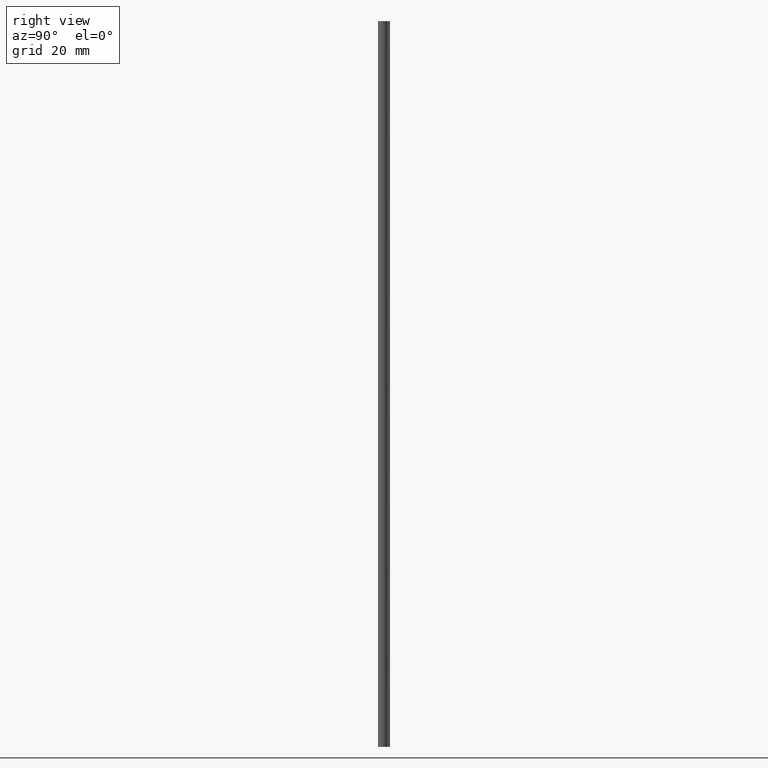
[diagram: clean part render]
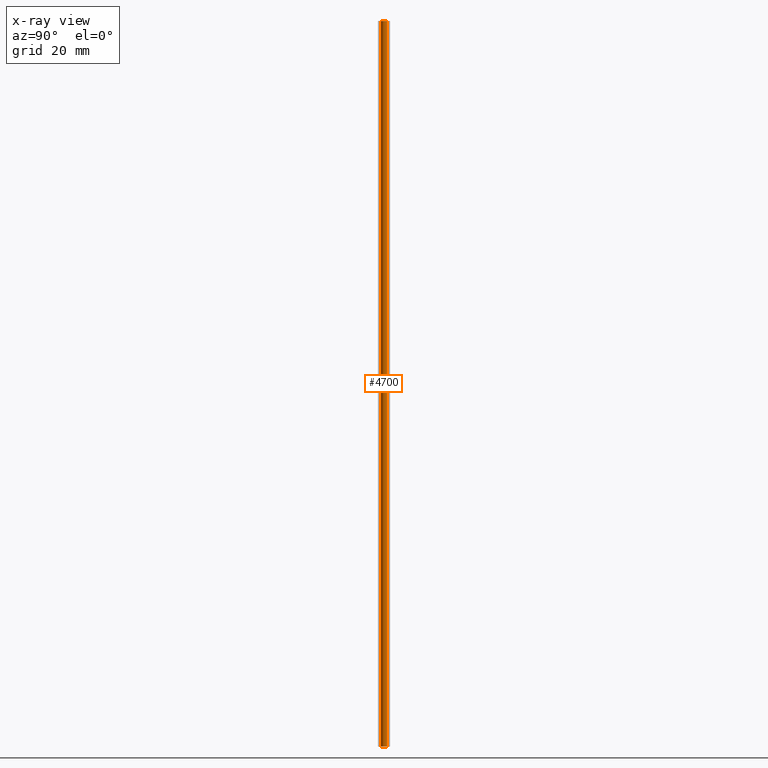
[diagram: x-ray — body ghosted, one internal face saturated and labeled with its STEP entity id]
A machine part, right view, then the same camera in x-ray: the body is ghosted and one INTERNAL B-rep face — a face not visible from any outside direction — is saturated and labeled: STEP entity #4700.
In plain terms, the highlighted face is a freeform B-spline surface patch.
Its self-contained STEP definition (entity closure, byte-faithful):
#4598=CARTESIAN_POINT('',(0.059017117328379,-0.496504763181833,123.000000000000010));
#4599=CARTESIAN_POINT('',(0.044807364318989,-0.498193807724303,123.0));
#4600=CARTESIAN_POINT('',(0.030524269767428,-0.499067399210933,123.0));
#4601=CARTESIAN_POINT('',(-0.468543129443505,-0.529591668978362,123.000000000000010));
#4602=CARTESIAN_POINT('',(-0.499067399210933,-0.030524269767428,123.0));
#4603=CARTESIAN_POINT('',(-0.529591668978362,0.468543129443505,123.000000000000010));
#4604=CARTESIAN_POINT('',(-0.030524269767428,0.499067399210933,123.0));
#4605=CARTESIAN_POINT('',(0.059017117328379,-0.496504763181833,-3.075000000000004));
#4606=CARTESIAN_POINT('',(0.044807364318989,-0.498193807724303,-3.075000000000003));
#4607=CARTESIAN_POINT('',(0.030524269767428,-0.499067399210933,-3.075000000000003));
#4608=CARTESIAN_POINT('',(-0.468543129443505,-0.529591668978362,-3.075000000000003));
#4609=CARTESIAN_POINT('',(-0.499067399210933,-0.030524269767428,-3.075000000000003));
#4610=CARTESIAN_POINT('',(-0.529591668978362,0.468543129443505,-3.075000000000003));
#4611=CARTESIAN_POINT('',(-0.030524269767428,0.499067399210933,-3.075000000000003));
#4619=(BOUNDED_SURFACE()B_SPLINE_SURFACE(2,1,((#4598,#4605),(#4599,#4606),(#4600,#4607),(#4601,#4608),(#4602,#4609),(#4603,#4610),(#4604,#4611)),.UNSPECIFIED.,.F.,.F.,.U.)B_SPLINE_SURFACE_WITH_KNOTS((3,2,2,3),(2,2),(3.078760800517997,3.141592653589793,4.712388980384690,6.283185307179586),(0.0,126.075000000000100),.UNSPECIFIED.)GEOMETRIC_REPRESENTATION_ITEM()RATIONAL_B_SPLINE_SURFACE(((0.977505800795127,0.977505800795127),(0.988284271247462,0.988284271247462),(1.0,1.0),(0.707106781186548,0.707106781186548),(1.0,1.0),(0.707106781186548,0.707106781186548),(1.0,1.0)))REPRESENTATION_ITEM('')SURFACE());
#4620=CARTESIAN_POINT('',(0.059017117441033,-0.496504763168443,-6.814628E-015));
#4621=VERTEX_POINT('',#4620);
#4622=CARTESIAN_POINT('',(-0.500000000000000,0.0,0.0));
#4623=VERTEX_POINT('',#4622);
#4624=CARTESIAN_POINT('',(0.059017117441033,-0.496504763168443,-6.814628E-015));
#4625=CARTESIAN_POINT('',(0.029612059939800,-0.500000000000000,0.0));
#4626=CARTESIAN_POINT('',(0.0,-0.500000000000000,0.0));
#4627=CARTESIAN_POINT('',(-0.500000000000000,-0.500000000000000,0.0));
#4628=CARTESIAN_POINT('',(-0.500000000000000,0.0,0.0));
#4636=(BOUNDED_CURVE()B_SPLINE_CURVE(2,(#4624,#4625,#4626,#4627,#4628),.UNSPECIFIED.,.F.,.U.)B_SPLINE_CURVE_WITH_KNOTS((3,2,3),(0.229562473438953,0.250000000000000,0.500000000000000),.UNSPECIFIED.)CURVE()GEOMETRIC_REPRESENTATION_ITEM()RATIONAL_B_SPLINE_CURVE((0.956026754037567,0.976055948243798,1.0,0.707106781186548,1.0))REPRESENTATION_ITEM(''));
#4637=EDGE_CURVE('',#4621,#4623,#4636,.T.);
#4638=ORIENTED_EDGE('',*,*,#4637,.F.);
#4639=CARTESIAN_POINT('',(0.059017117441033,-0.496504763168443,120.0));
#4640=VERTEX_POINT('',#4639);
#4641=CARTESIAN_POINT('',(0.059017117441033,-0.496504763168443,120.0));
#4642=CARTESIAN_POINT('',(0.059017117441033,-0.496504763168443,-6.814628E-015));
#4643=QUASI_UNIFORM_CURVE('',1,(#4641,#4642),.UNSPECIFIED.,.F.,.U.);
#4644=EDGE_CURVE('',#4640,#4621,#4643,.T.);
#4645=ORIENTED_EDGE('',*,*,#4644,.F.);
#4646=CARTESIAN_POINT('',(-0.500000000000000,0.0,120.0));
#4647=VERTEX_POINT('',#4646);
#4648=CARTESIAN_POINT('',(0.059017117441033,-0.496504763168443,120.000000000000030));
#4649=CARTESIAN_POINT('',(0.029612059939800,-0.500000000000000,120.000000000000070));
#4650=CARTESIAN_POINT('',(0.0,-0.500000000000000,120.0));
#4651=CARTESIAN_POINT('',(-0.500000000000000,-0.500000000000000,120.0));
#4652=CARTESIAN_POINT('',(-0.500000000000000,0.0,120.0));
#4660=(BOUNDED_CURVE()B_SPLINE_CURVE(2,(#4648,#4649,#4650,#4651,#4652),.UNSPECIFIED.,.F.,.U.)B_SPLINE_CURVE_WITH_KNOTS((3,2,3),(0.229562473438953,0.250000000000000,0.500000000000000),.UNSPECIFIED.)CURVE()GEOMETRIC_REPRESENTATION_ITEM()RATIONAL_B_SPLINE_CURVE((0.956026754037567,0.976055948243798,1.0,0.707106781186548,1.0))REPRESENTATION_ITEM(''));
#4661=EDGE_CURVE('',#4640,#4647,#4660,.T.);
#4662=ORIENTED_EDGE('',*,*,#4661,.T.);
#4663=CARTESIAN_POINT('',(-0.030524269876454,0.499067399204265,120.0));
#4664=VERTEX_POINT('',#4663);
#4665=CARTESIAN_POINT('',(-0.500000000000000,0.0,120.0));
#4666=CARTESIAN_POINT('',(-0.500000000000000,0.470353033246955,119.999999999999990));
#4667=CARTESIAN_POINT('',(-0.030524269876454,0.499067399204265,120.000000000000040));
#4675=(BOUNDED_CURVE()B_SPLINE_CURVE(2,(#4665,#4666,#4667),.UNSPECIFIED.,.F.,.U.)B_SPLINE_CURVE_WITH_KNOTS((3,3),(0.500000000000000,0.739332962166579),.UNSPECIFIED.)CURVE()GEOMETRIC_REPRESENTATION_ITEM()RATIONAL_B_SPLINE_CURVE((1.0,0.719603993371490,0.976072041511627))REPRESENTATION_ITEM(''));
#4676=EDGE_CURVE('',#4647,#4664,#4675,.T.);
#4677=ORIENTED_EDGE('',*,*,#4676,.T.);
#4678=CARTESIAN_POINT('',(-0.030524269876454,0.499067399204265,-6.883383E-015));
#4679=VERTEX_POINT('',#4678);
#4680=CARTESIAN_POINT('',(-0.030524269876454,0.499067399204265,120.0));
#4681=CARTESIAN_POINT('',(-0.030524269876454,0.499067399204265,-6.883383E-015));
#4682=QUASI_UNIFORM_CURVE('',1,(#4680,#4681),.UNSPECIFIED.,.F.,.U.);
#4683=EDGE_CURVE('',#4664,#4679,#4682,.T.);
#4684=ORIENTED_EDGE('',*,*,#4683,.T.);
#4685=CARTESIAN_POINT('',(-0.500000000000000,0.0,0.0));
#4686=CARTESIAN_POINT('',(-0.500000000000000,0.470353033246955,0.0));
#4687=CARTESIAN_POINT('',(-0.030524269876454,0.499067399204265,-6.883383E-015));
#4695=(BOUNDED_CURVE()B_SPLINE_CURVE(2,(#4685,#4686,#4687),.UNSPECIFIED.,.F.,.U.)B_SPLINE_CURVE_WITH_KNOTS((3,3),(0.500000000000000,0.739332962166579),.UNSPECIFIED.)CURVE()GEOMETRIC_REPRESENTATION_ITEM()RATIONAL_B_SPLINE_CURVE((1.0,0.719603993371490,0.976072041511627))REPRESENTATION_ITEM(''));
#4696=EDGE_CURVE('',#4623,#4679,#4695,.T.);
#4697=ORIENTED_EDGE('',*,*,#4696,.F.);
#4698=EDGE_LOOP('',(#4638,#4645,#4662,#4677,#4684,#4697));
#4699=FACE_OUTER_BOUND('',#4698,.T.);
#4700=ADVANCED_FACE('',(#4699),#4619,.T.);